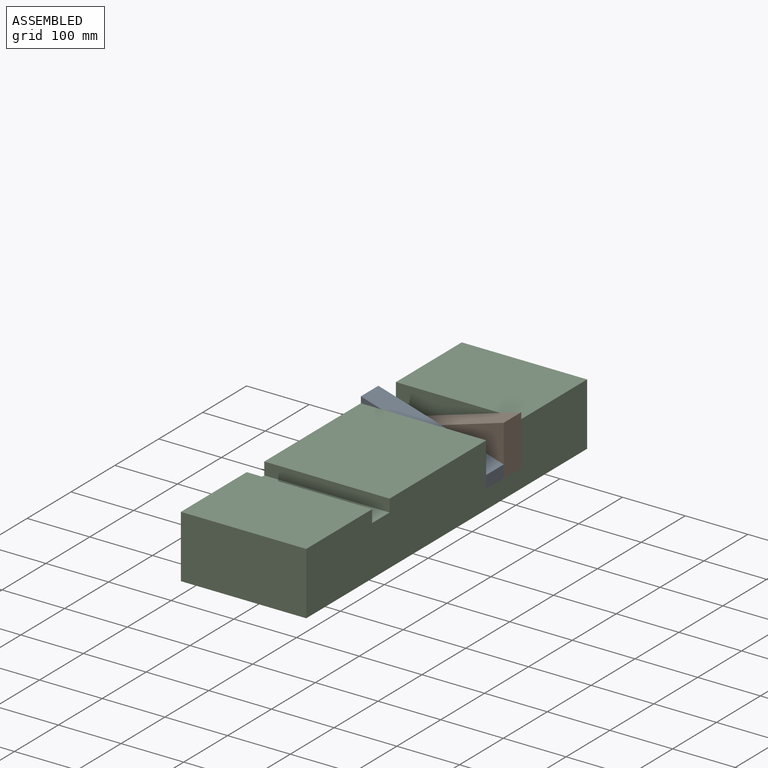
[diagram: assembled view]
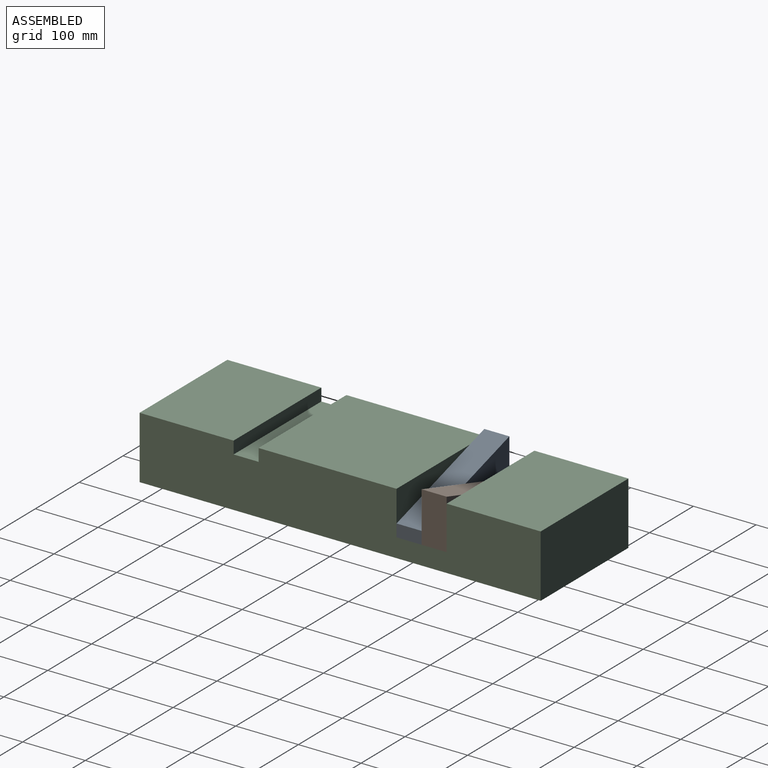
[diagram: assembled view, second angle]
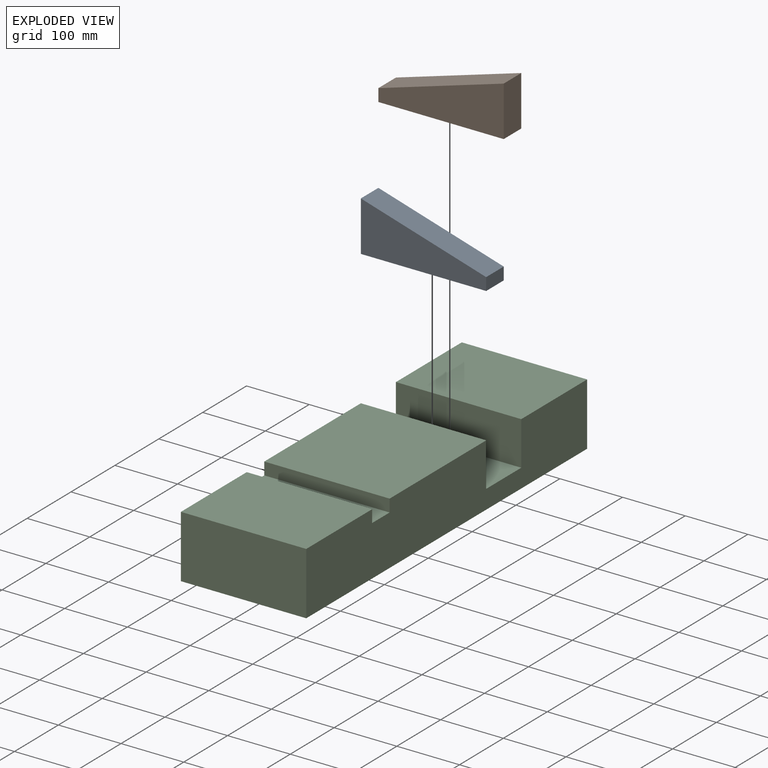
[diagram: exploded view]
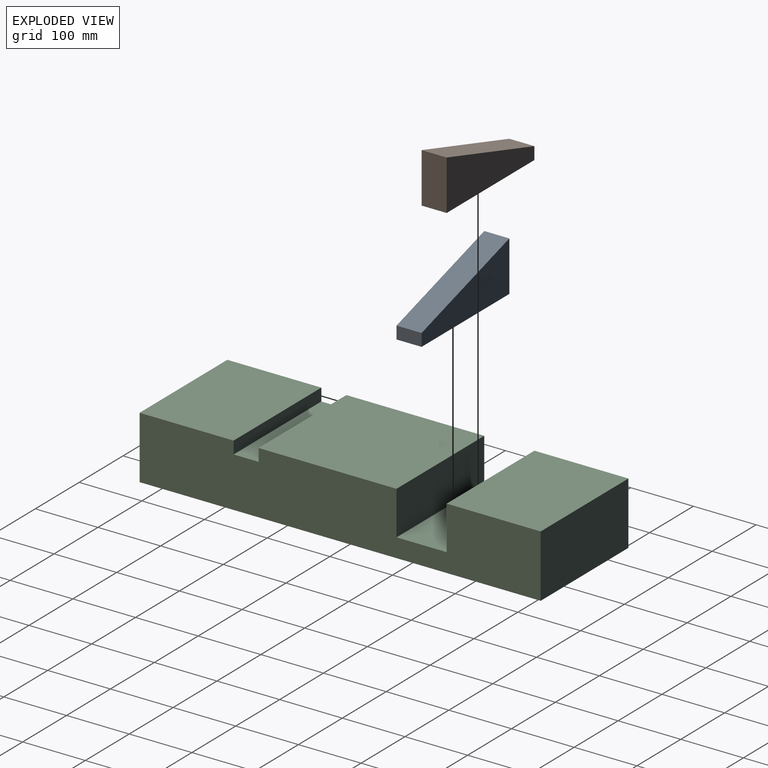
[diagram: exploded view, second angle]
ASSEMBLY  parts=3 mates=2
PART A: 6 faces, bbox 200x40x80 mm
  f0: plane 40x20mm, normal (-1,0,0), area 800mm2, adj f1,f3,f4,f5
  f1: plane 200x40mm, normal (0,0,-1), area 8000mm2, adj f0,f2,f4,f5
  f2: plane 80x40mm, normal (1,0,0), area 3200mm2, adj f1,f3,f4,f5
  f3: plane 200x60mm, normal (-0.29,0,0.96), area 8352.2mm2, adj f0,f2,f4,f5
  f4: plane 200x80mm, normal (0,-1,0), area 10000mm2, adj f0,f1,f2,f3
  f5: plane 200x80mm, normal (0,1,0), area 10000mm2, adj f0,f1,f2,f3
PART B: same geometry as A
PART C: 14 faces, bbox 200x640x100 mm
  f0: plane 640x200mm, normal (0,0,-1), area 128000mm2, adj f1,f11,f12,f13
  f1: plane 200x100mm, normal (0,1,0), area 20000mm2, adj f0,f2,f12,f13
  f2: plane 200x150mm, normal (0,0,1), area 30000mm2, adj f1,f3,f12,f13
  f3: plane 200x70mm, normal (0,-1,0), area 14000mm2, adj f2,f4,f12,f13
  f4: plane 200x80mm, normal (0,0,1), area 16000mm2, adj f3,f5,f12,f13
  f5: plane 200x70mm, normal (0,1,0), area 14000mm2, adj f4,f6,f12,f13
  f6: plane 220x200mm, normal (0,0,1), area 44000mm2, adj f5,f7,f12,f13
  f7: plane 200x20mm, normal (0,-1,0), area 4000mm2, adj f6,f8,f12,f13
  f8: plane 200x40mm, normal (0,0,1), area 8000mm2, adj f7,f9,f12,f13
  f9: plane 200x20mm, normal (0,1,0), area 4000mm2, adj f8,f10,f12,f13
  f10: plane 200x150mm, normal (0,0,1), area 30000mm2, adj f9,f11,f12,f13
  f11: plane 200x100mm, normal (0,-1,0), area 20000mm2, adj f0,f10,f12,f13
  f12: plane 640x100mm, normal (1,0,0), area 57600mm2, adj f0,f1,f2,f3,f4,f5,f6,f7
  f13: plane 640x100mm, normal (-1,0,0), area 57600mm2, adj f0,f1,f2,f3,f4,f5,f6,f7
PLACE A rot(axis=(0,0,1),180deg) t=(-135.13,-40.71,-149.54)mm
PLACE B t=(-142.78,39.29,-149.54)mm
PLACE C t=(-138.96,-130.71,-129.54)mm
MATE fastened C.f4 <-> A.f1  axis (0,0,1) through (-238.96,-40.71,-149.54)mm
MATE fastened C.f4 <-> B.f1  axis (0,0,1) through (-38.96,39.29,-149.54)mm
